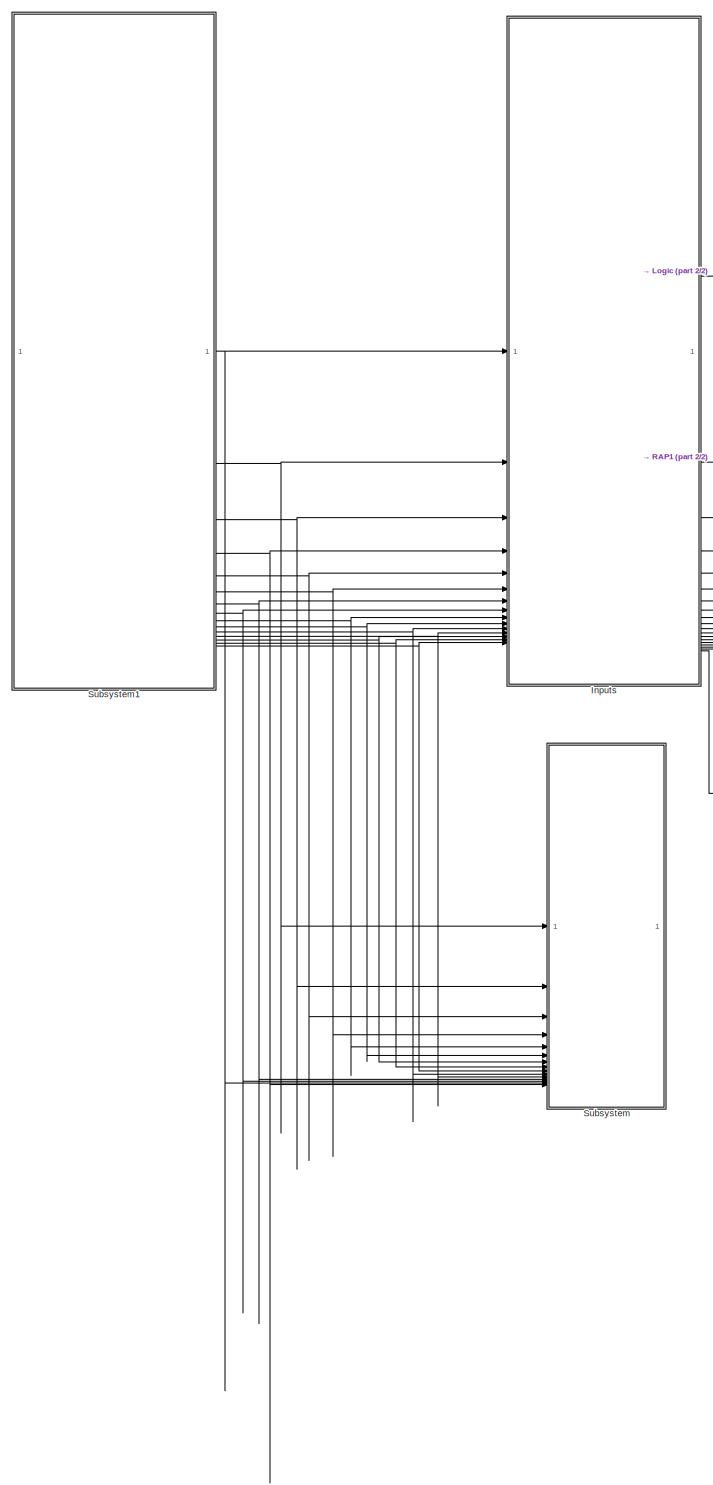
[diagram: root canvas - part 1/2, left side, full height]
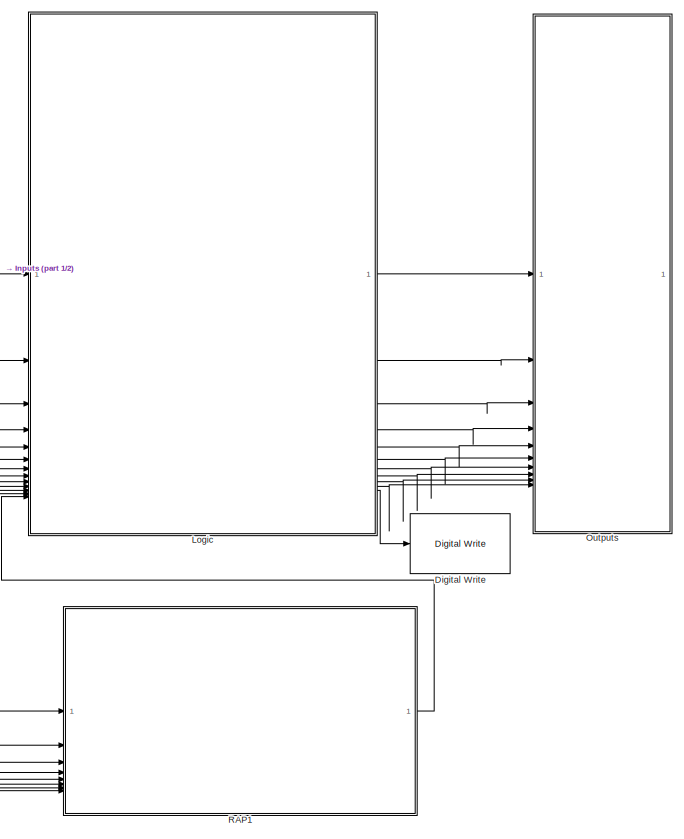
[diagram: root canvas - part 2/2, top right region]
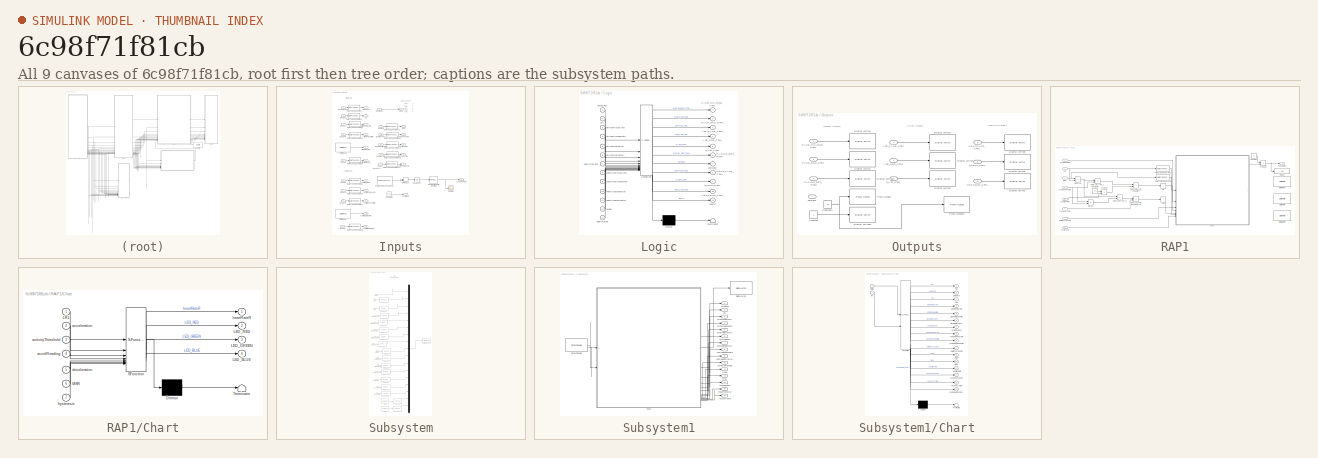
[diagram: thumbnail index - all 9 canvases of the model, root first then tree order]
MODEL slx_6c98f71f81cb
KIND model
CONFIG AbsTol = auto
CONFIG EnableMultiTasking = on
CONFIG FixedStep = 0.001
CONFIG MaxStep = auto
CONFIG MinStep = auto
CONFIG RelTol = 1e-3
CONFIG SampleTimeConstraint = Unconstrained
CONFIG SolverName = FixedStepAuto
CONFIG StartTime = 0.0
CONFIG StopTime = 30
BLOCK [Reference] Digital Write  REF=frdmk64flib/Digital Write
  SourceBlock = frdmk64flib/Digital Write
  SourceType = freedomk64f.DigitalWrite
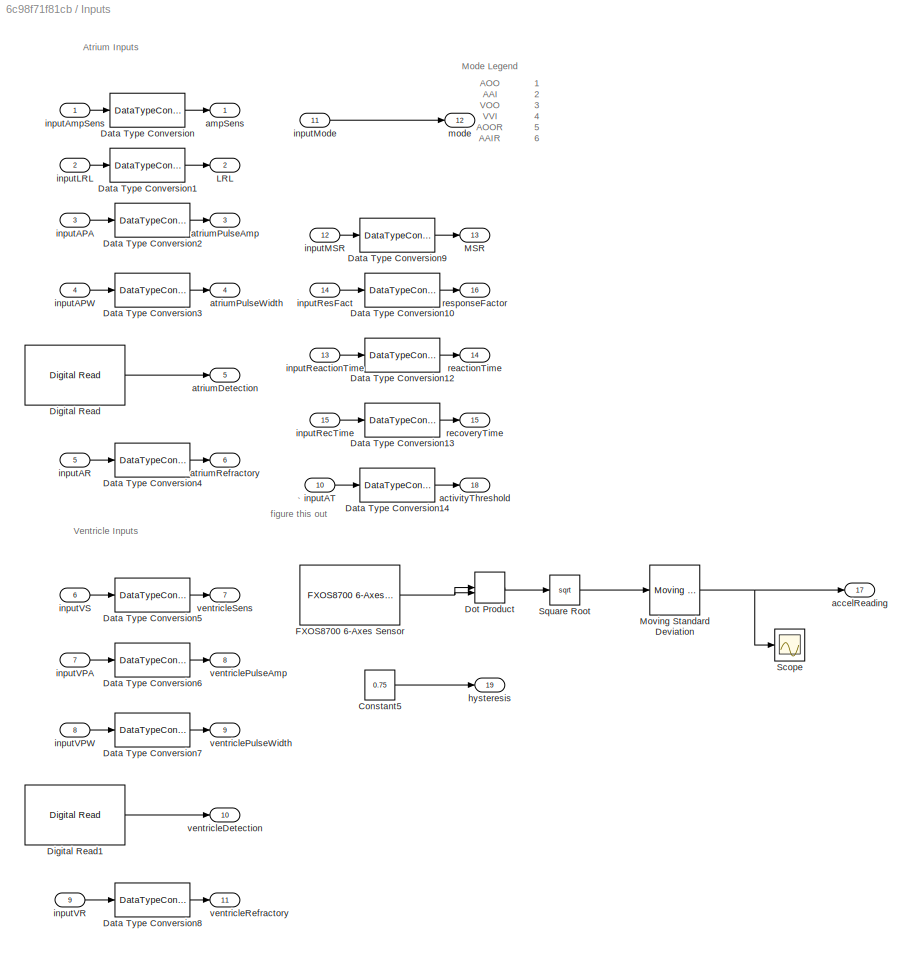
BLOCK [SubSystem] Inputs
BLOCK [Constant] Inputs/Constant5
  Value = 0.75
BLOCK [DataTypeConversion] Inputs/Data Type Conversion
  OutDataTypeStr = single
  RndMeth = Floor
  SaturateOnIntegerOverflow = off
BLOCK [DataTypeConversion] Inputs/Data Type Conversion1
  OutDataTypeStr = single
  RndMeth = Floor
  SaturateOnIntegerOverflow = off
BLOCK [DataTypeConversion] Inputs/Data Type Conversion10
  OutDataTypeStr = single
  RndMeth = Floor
  SaturateOnIntegerOverflow = off
BLOCK [DataTypeConversion] Inputs/Data Type Conversion12
  OutDataTypeStr = single
  RndMeth = Floor
  SaturateOnIntegerOverflow = off
BLOCK [DataTypeConversion] Inputs/Data Type Conversion13
  OutDataTypeStr = single
  RndMeth = Floor
  SaturateOnIntegerOverflow = off
BLOCK [DataTypeConversion] Inputs/Data Type Conversion14
  OutDataTypeStr = single
  RndMeth = Floor
  SaturateOnIntegerOverflow = off
BLOCK [DataTypeConversion] Inputs/Data Type Conversion2
  OutDataTypeStr = single
  RndMeth = Floor
  SaturateOnIntegerOverflow = off
BLOCK [DataTypeConversion] Inputs/Data Type Conversion3
  OutDataTypeStr = single
  RndMeth = Floor
  SaturateOnIntegerOverflow = off
BLOCK [DataTypeConversion] Inputs/Data Type Conversion4
  OutDataTypeStr = single
  RndMeth = Floor
  SaturateOnIntegerOverflow = off
BLOCK [DataTypeConversion] Inputs/Data Type Conversion5
  OutDataTypeStr = single
  RndMeth = Floor
  SaturateOnIntegerOverflow = off
BLOCK [DataTypeConversion] Inputs/Data Type Conversion6
  OutDataTypeStr = single
  RndMeth = Floor
  SaturateOnIntegerOverflow = off
BLOCK [DataTypeConversion] Inputs/Data Type Conversion7
  OutDataTypeStr = single
  RndMeth = Floor
  SaturateOnIntegerOverflow = off
BLOCK [DataTypeConversion] Inputs/Data Type Conversion8
  OutDataTypeStr = single
  RndMeth = Floor
  SaturateOnIntegerOverflow = off
BLOCK [DataTypeConversion] Inputs/Data Type Conversion9
  OutDataTypeStr = single
  RndMeth = Floor
  SaturateOnIntegerOverflow = off
BLOCK [Reference] Inputs/Digital Read  REF=frdmk64flib/Digital Read
  SourceBlock = frdmk64flib/Digital Read
  SourceType = freedomk64f.DigitalRead
BLOCK [Reference] Inputs/Digital Read1  REF=frdmk64flib/Digital Read
  SourceBlock = frdmk64flib/Digital Read
  SourceType = freedomk64f.DigitalRead
BLOCK [DotProduct] Inputs/Dot Product
  OutDataTypeStr = Inherit: Inherit via internal rule
BLOCK [Reference] Inputs/FXOS8700 6-Axes Sensor  REF=frdmk64flib/FXOS8700 6-Axes Sensor
  SourceBlock = frdmk64flib/FXOS8700 6-Axes Sensor
  SourceType = freedomk64f.fxos8700
BLOCK [Outport] Inputs/LRL
  OutDataTypeStr = single
  Port = 2
BLOCK [Outport] Inputs/MSR
  Port = 13
BLOCK [Reference] Inputs/Moving Standard Deviation  REF=dspstat3/Moving
Standard
Deviation
  SourceBlock = dspstat3/Moving\nStandard\nDeviation
  SourceType = dsp.simulink.MovingStandardDeviation
BLOCK [Scope] Inputs/Scope
  Floating = off
  NumInputPorts = 1
  ScopeSpecificationString = Simulink.scopes.TimeScopeBlockCfg('CurrentConfiguration', extmgr.ConfigurationSet(extmgr.Configuration('Core','General UI',true),extmgr.Configuration('Core','Source UI',true),extmgr.Configuration('Sources','WiredSimulink',true,'DataLoggingVariableName','ScopeData1'),extmgr.Configuration('Visuals','Time Domain',true,'SerializedDisplays',{struct('MinYLimReal','-0.35868','MaxYLimReal','4.99321','YLab...<+1428ch>
BLOCK [Sqrt] Inputs/Square Root
BLOCK [Outport] Inputs/accelReading
  Port = 17
BLOCK [Outport] Inputs/activityThreshold
  Port = 18
BLOCK [Outport] Inputs/ampSens
  OutDataTypeStr = single
BLOCK [Outport] Inputs/atriumDetection
  OutDataTypeStr = boolean
  Port = 5
BLOCK [Outport] Inputs/atriumPulseAmp
  OutDataTypeStr = single
  Port = 3
BLOCK [Outport] Inputs/atriumPulseWidth
  OutDataTypeStr = single
  Port = 4
BLOCK [Outport] Inputs/atriumRefractory
  OutDataTypeStr = single
  Port = 6
BLOCK [Outport] Inputs/hysteresis
  Port = 19
BLOCK [Inport] Inputs/inputAPA
  Port = 3
BLOCK [Inport] Inputs/inputAPW
  Port = 4
BLOCK [Inport] Inputs/inputAR
  Port = 5
BLOCK [Inport] Inputs/inputAT
  Port = 10
BLOCK [Inport] Inputs/inputAmpSens
BLOCK [Inport] Inputs/inputLRL
  Port = 2
BLOCK [Inport] Inputs/inputMSR
  Port = 12
BLOCK [Inport] Inputs/inputMode
  Port = 11
BLOCK [Inport] Inputs/inputReactionTime
  Port = 13
BLOCK [Inport] Inputs/inputRecTime
  Port = 15
BLOCK [Inport] Inputs/inputResFact
  Port = 14
BLOCK [Inport] Inputs/inputVPA
  Port = 7
BLOCK [Inport] Inputs/inputVPW
  Port = 8
BLOCK [Inport] Inputs/inputVR
  Port = 9
BLOCK [Inport] Inputs/inputVS
  Port = 6
BLOCK [Outport] Inputs/mode
  OutDataTypeStr = uint8
  Port = 12
BLOCK [Outport] Inputs/reactionTime
  Port = 14
BLOCK [Outport] Inputs/recoveryTime
  Port = 15
BLOCK [Outport] Inputs/responseFactor
  Port = 16
BLOCK [Outport] Inputs/ventricleDetection
  OutDataTypeStr = boolean
  Port = 10
BLOCK [Outport] Inputs/ventriclePulseAmp
  OutDataTypeStr = single
  Port = 8
BLOCK [Outport] Inputs/ventriclePulseWidth
  OutDataTypeStr = single
  Port = 9
BLOCK [Outport] Inputs/ventricleRefractory
  OutDataTypeStr = single
  Port = 11
BLOCK [Outport] Inputs/ventricleSens
  OutDataTypeStr = single
  Port = 7
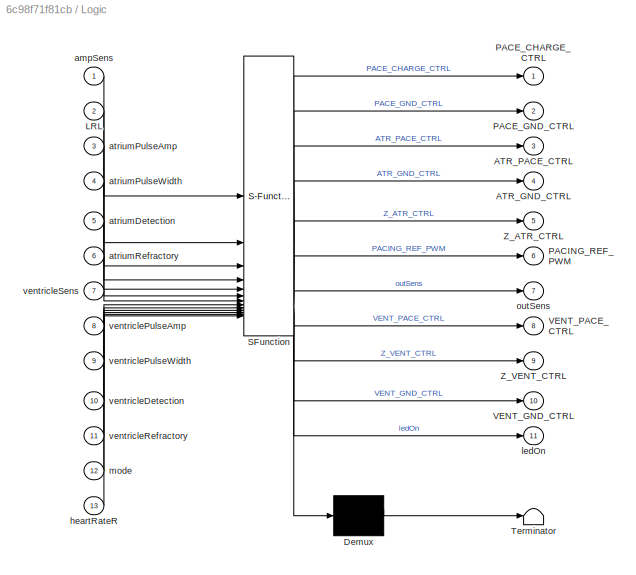
BLOCK [SubSystem] Logic
  ErrorFcn = Stateflow.Translate.translate
  PermitHierarchicalResolution = ExplicitOnly
  SFBlockType = Chart
  TreatAsAtomicUnit = on
BLOCK [Demux] Logic/ Demux 
  Outputs = 1
BLOCK [S-Function] Logic/ SFunction 
  EnableBusSupport = on
  FunctionName = sf_sfun
  PortCounts = [13 12]
  SFcnIsStateOwnerBlock = off
  SFunctionDeploymentMode = off
  Tag = Stateflow S-Function 3
BLOCK [Terminator] Logic/ Terminator 
BLOCK [Outport] Logic/ATR_GND_CTRL
  Port = 4
BLOCK [Outport] Logic/ATR_PACE_CTRL
  Port = 3
BLOCK [Inport] Logic/LRL
  Port = 2
BLOCK [Outport] Logic/PACE_CHARGE_CTRL
BLOCK [Outport] Logic/PACE_GND_CTRL
  Port = 2
BLOCK [Outport] Logic/PACING_REF_PWM
  Port = 6
BLOCK [Outport] Logic/VENT_GND_CTRL
  Port = 10
BLOCK [Outport] Logic/VENT_PACE_CTRL
  Port = 8
BLOCK [Outport] Logic/Z_ATR_CTRL
  Port = 5
BLOCK [Outport] Logic/Z_VENT_CTRL
  Port = 9
BLOCK [Inport] Logic/ampSens
BLOCK [Inport] Logic/atriumDetection
  Port = 5
BLOCK [Inport] Logic/atriumPulseAmp
  Port = 3
BLOCK [Inport] Logic/atriumPulseWidth
  Port = 4
BLOCK [Inport] Logic/atriumRefractory
  Port = 6
BLOCK [Inport] Logic/heartRateR
  Port = 13
BLOCK [Outport] Logic/ledOn
  Port = 11
BLOCK [Inport] Logic/mode
  Port = 12
BLOCK [Outport] Logic/outSens
  Port = 7
BLOCK [Inport] Logic/ventricleDetection
  Port = 10
BLOCK [Inport] Logic/ventriclePulseAmp
  Port = 8
BLOCK [Inport] Logic/ventriclePulseWidth
  Port = 9
BLOCK [Inport] Logic/ventricleRefractory
  Port = 11
BLOCK [Inport] Logic/ventricleSens
  Port = 7
BLOCK [SubSystem] Outputs
BLOCK [Inport] Outputs/ATR_GND_CTRL
  OutDataTypeStr = boolean
  Port = 4
BLOCK [Inport] Outputs/ATR_PACE_CTRL
  OutDataTypeStr = boolean
  Port = 3
BLOCK [Constant] Outputs/Constant
  OutDataTypeStr = single
BLOCK [Constant] Outputs/Constant1
  Value = 75
BLOCK [Reference] Outputs/Digital Write1  REF=frdmk64flib/Digital Write
  SourceBlock = frdmk64flib/Digital Write
  SourceType = freedomk64f.DigitalWrite
BLOCK [Reference] Outputs/Digital Write10  REF=frdmk64flib/Digital Write
  SourceBlock = frdmk64flib/Digital Write
  SourceType = freedomk64f.DigitalWrite
BLOCK [Reference] Outputs/Digital Write2  REF=frdmk64flib/Digital Write
  SourceBlock = frdmk64flib/Digital Write
  SourceType = freedomk64f.DigitalWrite
BLOCK [Reference] Outputs/Digital Write3  REF=frdmk64flib/Digital Write
  SourceBlock = frdmk64flib/Digital Write
  SourceType = freedomk64f.DigitalWrite
BLOCK [Reference] Outputs/Digital Write4  REF=frdmk64flib/Digital Write
  SourceBlock = frdmk64flib/Digital Write
  SourceType = freedomk64f.DigitalWrite
BLOCK [Reference] Outputs/Digital Write5  REF=frdmk64flib/Digital Write
  SourceBlock = frdmk64flib/Digital Write
  SourceType = freedomk64f.DigitalWrite
BLOCK [Reference] Outputs/Digital Write6  REF=frdmk64flib/Digital Write
  SourceBlock = frdmk64flib/Digital Write
  SourceType = freedomk64f.DigitalWrite
BLOCK [Reference] Outputs/Digital Write7  REF=frdmk64flib/Digital Write
  SourceBlock = frdmk64flib/Digital Write
  SourceType = freedomk64f.DigitalWrite
BLOCK [Reference] Outputs/Digital Write8  REF=frdmk64flib/Digital Write
  SourceBlock = frdmk64flib/Digital Write
  SourceType = freedomk64f.DigitalWrite
BLOCK [Reference] Outputs/Digital Write9  REF=frdmk64flib/Digital Write
  SourceBlock = frdmk64flib/Digital Write
  SourceType = freedomk64f.DigitalWrite
BLOCK [Inport] Outputs/PACE_CHARGE_CTRL
  OutDataTypeStr = boolean
BLOCK [Inport] Outputs/PACE_GND_CTRL
  OutDataTypeStr = boolean
  Port = 2
BLOCK [Inport] Outputs/PACING_REF_PWM
  OutDataTypeStr = single
  Port = 6
BLOCK [Reference] Outputs/PWM Output  REF=frdmk64flib/PWM Output
  SourceBlock = frdmk64flib/PWM Output
  SourceType = freedomk64f.PWMOutput
BLOCK [Reference] Outputs/PWM Output1  REF=frdmk64flib/PWM Output
  SourceBlock = frdmk64flib/PWM Output
  SourceType = freedomk64f.PWMOutput
BLOCK [Inport] Outputs/VENT_GND_CTRL
  OutDataTypeStr = boolean
  Port = 10
BLOCK [Inport] Outputs/VENT_PACE_CTRL
  OutDataTypeStr = boolean
  Port = 8
BLOCK [Inport] Outputs/Z_ATR_CTRL
  OutDataTypeStr = boolean
  Port = 5
BLOCK [Inport] Outputs/Z_VENT_CTRL
  OutDataTypeStr = boolean
  Port = 9
BLOCK [Inport] Outputs/outSens
  OutDataTypeStr = single
  Port = 7
BLOCK [SubSystem] RAP1
BLOCK [Product] RAP1/(MSR-LRL)*RF_A
BLOCK [Product] RAP1/(MSR-LRL)*RF_A//reactionT
  Inputs = */
BLOCK [Product] RAP1/(MSR-LRL)*RF_D
BLOCK [Product] RAP1/(MSR-LRL)*RF_D//recoveryT
  Inputs = */
BLOCK [Rounding] RAP1/Ceil
  Operator = ceil
BLOCK [Rounding] RAP1/Ceil1
  Operator = ceil
BLOCK [SubSystem] RAP1/Chart
  ErrorFcn = Stateflow.Translate.translate
  PermitHierarchicalResolution = ExplicitOnly
  PortSchema = {"entries":[{"content":{"sides":[{"content":{"connectorIds":["In4","In1","In6","In2","In5","In3","In7"]},"type":"ConnectorPlacement.EquallySpacedRectSide","uuid":"e727a920-989a-48c2-8c82-674329886a5f"},{"content":{"connectorIds":["Out1","Out3","Out2","Out4"],"side":"RIGHT"},"type":"ConnectorPlacement.EquallySpacedRectSide","uuid":"1ee40f3e-9295-4daa-a641-24f0111d1364"},{"content":{"side":"TOP"},"t...<+279ch>
  SFBlockType = Chart
  TreatAsAtomicUnit = on
BLOCK [Demux] RAP1/Chart/ Demux 
  Outputs = 1
BLOCK [S-Function] RAP1/Chart/ SFunction 
  EnableBusSupport = on
  FunctionName = sf_sfun
  PortCounts = [7 5]
  SFcnIsStateOwnerBlock = off
  SFunctionDeploymentMode = off
  Tag = Stateflow S-Function 4
BLOCK [Terminator] RAP1/Chart/ Terminator 
BLOCK [Outport] RAP1/Chart/LED_BLUE
  Port = 4
BLOCK [Outport] RAP1/Chart/LED_GREEN
  Port = 3
BLOCK [Outport] RAP1/Chart/LED_RED
  Port = 2
BLOCK [Inport] RAP1/Chart/LRL
BLOCK [Inport] RAP1/Chart/MSR
  Port = 6
BLOCK [Inport] RAP1/Chart/accelReading
  Port = 4
BLOCK [Inport] RAP1/Chart/acceleration
  Port = 2
BLOCK [Inport] RAP1/Chart/activityThreshold
  Port = 3
BLOCK [Inport] RAP1/Chart/deceleration
  Port = 5
BLOCK [Outport] RAP1/Chart/heartRateR
BLOCK [Inport] RAP1/Chart/hysteresis
  Port = 7
BLOCK [Constant] RAP1/Constant
  OutDataTypeStr = single
  Value = 2
BLOCK [Constant] RAP1/Constant2
  Value = 10
BLOCK [DataTypeConversion] RAP1/Data Type Conversion
  OutDataTypeStr = single
  RndMeth = Floor
  SaturateOnIntegerOverflow = off
BLOCK [DataTypeConversion] RAP1/Data Type Conversion1
  OutDataTypeStr = single
  RndMeth = Floor
  SaturateOnIntegerOverflow = off
BLOCK [Reference] RAP1/Digital Write  REF=frdmk64flib/Digital Write
  Commented = on
  SourceBlock = frdmk64flib/Digital Write
  SourceType = freedomk64f.DigitalWrite
BLOCK [Reference] RAP1/Digital Write1  REF=frdmk64flib/Digital Write
  Commented = on
  SourceBlock = frdmk64flib/Digital Write
  SourceType = freedomk64f.DigitalWrite
BLOCK [Reference] RAP1/Digital Write2  REF=frdmk64flib/Digital Write
  Commented = on
  SourceBlock = frdmk64flib/Digital Write
  SourceType = freedomk64f.DigitalWrite
BLOCK [Display] RAP1/Display
  Decimation = 1
BLOCK [Inport] RAP1/LRL
BLOCK [Inport] RAP1/MSR
  Port = 2
BLOCK [Sum] RAP1/MSR-LRL
  IconShape = rectangular
  Inputs = +-
BLOCK [Product] RAP1/Product
BLOCK [Product] RAP1/Product1
BLOCK [Product] RAP1/RF_D
  Inputs = */
BLOCK [Inport] RAP1/accelReading
  Port = 6
BLOCK [Inport] RAP1/activityThreshold
  Port = 7
BLOCK [Outport] RAP1/heartRateR
BLOCK [Inport] RAP1/hysteresis
  Port = 8
BLOCK [Inport] RAP1/reactionTime
  Port = 3
BLOCK [Inport] RAP1/recoveryTime
  Port = 4
BLOCK [Inport] RAP1/responseFactor
  Port = 5
BLOCK [SubSystem] Subsystem
BLOCK [Reference] Subsystem/Byte Pack  REF=etargetslib/Byte Pack
  LibrarySourceBlock = embeddedtargetslib/Host Communication/Byte Pack
  SourceBlock = etargetslib/Byte Pack
  SourceType = Byte pack
BLOCK [Reference] Subsystem/Byte Pack1  REF=etargetslib/Byte Pack
  SourceBlock = etargetslib/Byte Pack
  SourceType = Byte pack
BLOCK [Reference] Subsystem/Byte Pack10  REF=etargetslib/Byte Pack
  SourceBlock = etargetslib/Byte Pack
  SourceType = Byte pack
BLOCK [Reference] Subsystem/Byte Pack11  REF=etargetslib/Byte Pack
  SourceBlock = etargetslib/Byte Pack
  SourceType = Byte pack
BLOCK [Reference] Subsystem/Byte Pack12  REF=etargetslib/Byte Pack
  SourceBlock = etargetslib/Byte Pack
  SourceType = Byte pack
BLOCK [Reference] Subsystem/Byte Pack13  REF=etargetslib/Byte Pack
  SourceBlock = etargetslib/Byte Pack
  SourceType = Byte pack
BLOCK [Reference] Subsystem/Byte Pack14  REF=etargetslib/Byte Pack
  LibrarySourceBlock = embeddedtargetslib/Host Communication/Byte Pack
  SourceBlock = etargetslib/Byte Pack
  SourceType = Byte pack
BLOCK [Reference] Subsystem/Byte Pack15  REF=etargetslib/Byte Pack
  SourceBlock = etargetslib/Byte Pack
  SourceType = Byte pack
BLOCK [Reference] Subsystem/Byte Pack2  REF=etargetslib/Byte Pack
  SourceBlock = etargetslib/Byte Pack
  SourceType = Byte pack
BLOCK [Reference] Subsystem/Byte Pack3  REF=etargetslib/Byte Pack
  SourceBlock = etargetslib/Byte Pack
  SourceType = Byte pack
BLOCK [Reference] Subsystem/Byte Pack4  REF=etargetslib/Byte Pack
  SourceBlock = etargetslib/Byte Pack
  SourceType = Byte pack
BLOCK [Reference] Subsystem/Byte Pack5  REF=etargetslib/Byte Pack
  SourceBlock = etargetslib/Byte Pack
  SourceType = Byte pack
BLOCK [Reference] Subsystem/Byte Pack6  REF=etargetslib/Byte Pack
  SourceBlock = etargetslib/Byte Pack
  SourceType = Byte pack
BLOCK [Reference] Subsystem/Byte Pack7  REF=etargetslib/Byte Pack
  SourceBlock = etargetslib/Byte Pack
  SourceType = Byte pack
BLOCK [Reference] Subsystem/Byte Pack8  REF=etargetslib/Byte Pack
  SourceBlock = etargetslib/Byte Pack
  SourceType = Byte pack
BLOCK [Reference] Subsystem/Byte Pack9  REF=etargetslib/Byte Pack
  SourceBlock = etargetslib/Byte Pack
  SourceType = Byte pack
BLOCK [Inport] Subsystem/LRL
  OutDataTypeStr = double
BLOCK [Inport] Subsystem/MSR
  OutDataTypeStr = double
  Port = 11
BLOCK [Mux] Subsystem/Mux
  DisplayOption = bar
  Inputs = 17
BLOCK [Reference] Subsystem/Serial Transmit  REF=frdmk64flib/Serial Transmit
  SourceBlock = frdmk64flib/Serial Transmit
  SourceType = freedomk64f.SCIWrite
BLOCK [Inport] Subsystem/activityThreshold
  OutDataTypeStr = double
  Port = 6
BLOCK [Inport] Subsystem/ampSens
  OutDataTypeStr = double
  Port = 14
BLOCK [Reference] Subsystem/atrium  REF=frdmk64flib/Analog Input
  SourceBlock = frdmk64flib/Analog Input
  SourceType = freedomk64f.AnalogInput
BLOCK [Inport] Subsystem/atriumPulseAmp
  OutDataTypeStr = double
  Port = 2
BLOCK [Inport] Subsystem/atriumPulseWidth
  OutDataTypeStr = double
  Port = 15
BLOCK [Inport] Subsystem/atriumRefractory
  OutDataTypeStr = double
  Port = 3
BLOCK [Inport] Subsystem/mode1
  OutDataTypeStr = uint8
  Port = 10
BLOCK [Inport] Subsystem/reactionTime
  OutDataTypeStr = double
  Port = 7
BLOCK [Inport] Subsystem/recoveryTime
  OutDataTypeStr = double
  Port = 9
BLOCK [Inport] Subsystem/responseFactor
  OutDataTypeStr = double
  Port = 8
BLOCK [TriggerPort] Subsystem/sending_parameters
  FunctionName = sending_parameters
  IsSimulinkFunction = on
  StatesWhenEnabling = held
  TriggerType = function-call
  VariantControl = Variant
BLOCK [Reference] Subsystem/ventricle  REF=frdmk64flib/Analog Input
  SourceBlock = frdmk64flib/Analog Input
  SourceType = freedomk64f.AnalogInput
BLOCK [Inport] Subsystem/ventriclePulseAmp
  OutDataTypeStr = double
  Port = 12
BLOCK [Inport] Subsystem/ventriclePulseWidth
  OutDataTypeStr = double
  Port = 13
BLOCK [Inport] Subsystem/ventricleRefractory
  OutDataTypeStr = double
  Port = 5
BLOCK [Inport] Subsystem/ventricleSens
  OutDataTypeStr = double
  Port = 4
BLOCK [SubSystem] Subsystem1
BLOCK [Outport] Subsystem1/AmpSens
  OutDataTypeStr = double
BLOCK [SubSystem] Subsystem1/Chart
  ErrorFcn = Stateflow.Translate.translate
  PermitHierarchicalResolution = ExplicitOnly
  PortSchema = {"entries":[{"content":{"sides":[{"content":{"connectorIds":["In2","In1"]},"type":"ConnectorPlacement.EquallySpacedRectSide","uuid":"4f5a3770-f300-418f-9487-637399e38c69"},{"content":{"connectorIds":["Out1","Out2","Out3","Out4","Out5","Out6","Out7","Out8","Out9","Out16","Out10","Out11","Out12","Out13","Out14","Out15"],"side":"RIGHT"},"type":"ConnectorPlacement.EquallySpacedRectSide","uuid":"cfe58c...<+340ch>
  SFBlockType = Chart
  TreatAsAtomicUnit = on
BLOCK [Demux] Subsystem1/Chart/ Demux 
  Outputs = 1
BLOCK [S-Function] Subsystem1/Chart/ SFunction 
  EnableBusSupport = on
  FunctionName = sf_sfun
  PortCounts = [2 17]
  SFcnIsStateOwnerBlock = off
  SFunctionDeploymentMode = off
  Tag = Stateflow S-Function 2
BLOCK [Terminator] Subsystem1/Chart/ Terminator 
BLOCK [Outport] Subsystem1/Chart/LRL
  Port = 3
BLOCK [Outport] Subsystem1/Chart/MSR
  Port = 12
BLOCK [Inport] Subsystem1/Chart/RX
  Port = 2
BLOCK [Inport] Subsystem1/Chart/Status
BLOCK [Outport] Subsystem1/Chart/activityThreshold
  Port = 10
BLOCK [Outport] Subsystem1/Chart/ampSens
  Port = 2
BLOCK [Outport] Subsystem1/Chart/atriumPulseAmp
  Port = 4
BLOCK [Outport] Subsystem1/Chart/atriumPulseWidth
  Port = 5
BLOCK [Outport] Subsystem1/Chart/atriumRefractory
  Port = 6
BLOCK [Outport] Subsystem1/Chart/led
BLOCK [Outport] Subsystem1/Chart/mode
  Port = 11
BLOCK [Outport] Subsystem1/Chart/reactionTime
  Port = 13
BLOCK [Outport] Subsystem1/Chart/recoveryTime
  Port = 15
BLOCK [Outport] Subsystem1/Chart/responseFactor
  Port = 14
BLOCK [Outport] Subsystem1/Chart/ventriclePulseAmp
  Port = 8
BLOCK [Outport] Subsystem1/Chart/ventriclePulseWidth
  Port = 9
BLOCK [Outport] Subsystem1/Chart/ventricleRefractory
  Port = 16
BLOCK [Outport] Subsystem1/Chart/ventricleSens
  Port = 7
BLOCK [Reference] Subsystem1/Digital Write  REF=frdmk64flib/Digital Write
  SourceBlock = frdmk64flib/Digital Write
  SourceType = freedomk64f.DigitalWrite
BLOCK [Outport] Subsystem1/LRL
  OutDataTypeStr = double
  Port = 2
BLOCK [Outport] Subsystem1/MSR
  OutDataTypeStr = double
  Port = 12
BLOCK [Reference] Subsystem1/Serial Receive  REF=frdmk64flib/Serial Receive
  SourceBlock = frdmk64flib/Serial Receive
  SourceType = freedomk64f.SCIRead
BLOCK [Outport] Subsystem1/activityThreshold
  OutDataTypeStr = double
  Port = 10
BLOCK [Outport] Subsystem1/atriumPulseAmp
  OutDataTypeStr = double
  Port = 3
BLOCK [Outport] Subsystem1/atriumPulseWidth
  OutDataTypeStr = double
  Port = 4
BLOCK [Outport] Subsystem1/atriumRefractory
  OutDataTypeStr = double
  Port = 5
BLOCK [Outport] Subsystem1/mode
  OutDataTypeStr = uint8
  Port = 11
BLOCK [Outport] Subsystem1/reactionTime
  OutDataTypeStr = double
  Port = 13
BLOCK [Outport] Subsystem1/recoveryTime
  OutDataTypeStr = double
  Port = 15
BLOCK [Outport] Subsystem1/responseFactor
  OutDataTypeStr = double
  Port = 14
BLOCK [Outport] Subsystem1/ventriclePulseAmp
  OutDataTypeStr = double
  Port = 7
BLOCK [Outport] Subsystem1/ventriclePulseWidth
  OutDataTypeStr = double
  Port = 8
BLOCK [Outport] Subsystem1/ventricleRefractory
  OutDataTypeStr = double
  Port = 9
BLOCK [Outport] Subsystem1/ventricleSens
  OutDataTypeStr = double
  Port = 6
ANNOTATION Inputs: 1 2 3 4 5 6 7 8
ANNOTATION Inputs: Atrium Inputs
ANNOTATION Inputs: Ventricle Inputs
ANNOTATION Inputs: Mode Legend
ANNOTATION Inputs: AOO AAI VOO VVI AOOR AAIR VOO VVIR
ANNOTATION Inputs: figure this out `
ANNOTATION Outputs: General Outputs
ANNOTATION Outputs: Ventricle Outputs
ANNOTATION Outputs: Atrium Outputs
LINE Inputs/Constant5:1 -> Inputs/hysteresis:1
LINE Inputs/Data Type Conversion10:1 -> Inputs/responseFactor:1
LINE Inputs/Data Type Conversion12:1 -> Inputs/reactionTime:1
LINE Inputs/Data Type Conversion13:1 -> Inputs/recoveryTime:1
LINE Inputs/Data Type Conversion14:1 -> Inputs/activityThreshold:1
LINE Inputs/Data Type Conversion1:1 -> Inputs/LRL:1
LINE Inputs/Data Type Conversion2:1 -> Inputs/atriumPulseAmp:1
LINE Inputs/Data Type Conversion3:1 -> Inputs/atriumPulseWidth:1
LINE Inputs/Data Type Conversion4:1 -> Inputs/atriumRefractory:1
LINE Inputs/Data Type Conversion5:1 -> Inputs/ventricleSens:1
LINE Inputs/Data Type Conversion6:1 -> Inputs/ventriclePulseAmp:1
LINE Inputs/Data Type Conversion7:1 -> Inputs/ventriclePulseWidth:1
LINE Inputs/Data Type Conversion8:1 -> Inputs/ventricleRefractory:1
LINE Inputs/Data Type Conversion9:1 -> Inputs/MSR:1
LINE Inputs/Data Type Conversion:1 -> Inputs/ampSens:1
LINE Inputs/Digital Read1:1 -> Inputs/ventricleDetection:1
LINE Inputs/Digital Read:1 -> Inputs/atriumDetection:1
LINE Inputs/Dot Product:1 -> Inputs/Square Root:1
NET Inputs/FXOS8700 6-Axes Sensor:1 -> Inputs/Dot Product:1, Inputs/Dot Product:2
NET Inputs/Moving Standard Deviation:1 -> Inputs/Scope:1, Inputs/accelReading:1
LINE Inputs/Square Root:1 -> Inputs/Moving Standard Deviation:1
LINE Inputs/inputAPA:1 -> Inputs/Data Type Conversion2:1
LINE Inputs/inputAPW:1 -> Inputs/Data Type Conversion3:1
LINE Inputs/inputAR:1 -> Inputs/Data Type Conversion4:1
LINE Inputs/inputAT:1 -> Inputs/Data Type Conversion14:1
LINE Inputs/inputAmpSens:1 -> Inputs/Data Type Conversion:1
LINE Inputs/inputLRL:1 -> Inputs/Data Type Conversion1:1
LINE Inputs/inputMSR:1 -> Inputs/Data Type Conversion9:1
LINE Inputs/inputMode:1 -> Inputs/mode:1
LINE Inputs/inputReactionTime:1 -> Inputs/Data Type Conversion12:1
LINE Inputs/inputRecTime:1 -> Inputs/Data Type Conversion13:1
LINE Inputs/inputResFact:1 -> Inputs/Data Type Conversion10:1
LINE Inputs/inputVPA:1 -> Inputs/Data Type Conversion6:1
LINE Inputs/inputVPW:1 -> Inputs/Data Type Conversion7:1
LINE Inputs/inputVR:1 -> Inputs/Data Type Conversion8:1
LINE Inputs/inputVS:1 -> Inputs/Data Type Conversion5:1
LINE Inputs:1 -> Logic:1
LINE Inputs:10 -> Logic:10
LINE Inputs:11 -> Logic:11
LINE Inputs:12 -> Logic:12
LINE Inputs:13 -> RAP1:2
LINE Inputs:14 -> RAP1:3
LINE Inputs:15 -> RAP1:4
LINE Inputs:16 -> RAP1:5
LINE Inputs:17 -> RAP1:6
LINE Inputs:18 -> RAP1:7
LINE Inputs:19 -> RAP1:8
NET Inputs:2 -> Logic:2, RAP1:1
LINE Inputs:3 -> Logic:3
LINE Inputs:4 -> Logic:4
LINE Inputs:5 -> Logic:5
LINE Inputs:6 -> Logic:6
LINE Inputs:7 -> Logic:7
LINE Inputs:8 -> Logic:8
LINE Inputs:9 -> Logic:9
LINE Logic:1 -> Outputs:1
LINE Logic:10 -> Outputs:10
LINE Logic:11 -> Digital Write:1
LINE Logic:2 -> Outputs:2
LINE Logic:3 -> Outputs:3
LINE Logic:4 -> Outputs:4
LINE Logic:5 -> Outputs:5
LINE Logic:6 -> Outputs:6
LINE Logic:7 -> Outputs:7
LINE Logic:8 -> Outputs:8
LINE Logic:9 -> Outputs:9
LINE Outputs/ATR_GND_CTRL:1 -> Outputs/Digital Write7:1
LINE Outputs/ATR_PACE_CTRL:1 -> Outputs/Digital Write4:1
NET Outputs/Constant1:1 -> Outputs/PWM Output1:1, Outputs/PWM Output:1
LINE Outputs/Constant:1 -> Outputs/Digital Write10:1
LINE Outputs/PACE_CHARGE_CTRL:1 -> Outputs/Digital Write3:1
LINE Outputs/PACE_GND_CTRL:1 -> Outputs/Digital Write1:1
LINE Outputs/PACING_REF_PWM:1 -> Outputs/Digital Write6:1
LINE Outputs/VENT_GND_CTRL:1 -> Outputs/Digital Write2:1
LINE Outputs/VENT_PACE_CTRL:1 -> Outputs/Digital Write8:1
LINE Outputs/Z_ATR_CTRL:1 -> Outputs/Digital Write5:1
LINE Outputs/Z_VENT_CTRL:1 -> Outputs/Digital Write9:1
LINE RAP1/(MSR-LRL)*RF_A//reactionT:1 -> RAP1/Ceil:1
LINE RAP1/(MSR-LRL)*RF_A:1 -> RAP1/(MSR-LRL)*RF_A//reactionT:1
LINE RAP1/(MSR-LRL)*RF_D//recoveryT:1 -> RAP1/Ceil1:1
LINE RAP1/(MSR-LRL)*RF_D:1 -> RAP1/(MSR-LRL)*RF_D//recoveryT:1
LINE RAP1/Ceil1:1 -> RAP1/Chart:5
LINE RAP1/Ceil:1 -> RAP1/Chart:2
LINE RAP1/Chart:1 -> RAP1/Product1:2
LINE RAP1/Constant2:1 -> RAP1/Product:1
LINE RAP1/Constant:1 -> RAP1/Product1:1
LINE RAP1/Data Type Conversion1:1 -> RAP1/Chart:1
LINE RAP1/Data Type Conversion:1 -> RAP1/Chart:6
NET RAP1/LRL:1 -> RAP1/Data Type Conversion1:1, RAP1/MSR-LRL:2
NET RAP1/MSR-LRL:1 -> RAP1/(MSR-LRL)*RF_A:1, RAP1/(MSR-LRL)*RF_D:1
NET RAP1/MSR:1 -> RAP1/Data Type Conversion:1, RAP1/MSR-LRL:1
NET RAP1/Product1:1 -> RAP1/Display:1, RAP1/heartRateR:1
LINE RAP1/Product:1 -> RAP1/(MSR-LRL)*RF_A//reactionT:2
LINE RAP1/RF_D:1 -> RAP1/(MSR-LRL)*RF_D:2
LINE RAP1/accelReading:1 -> RAP1/Chart:4
LINE RAP1/activityThreshold:1 -> RAP1/Chart:3
LINE RAP1/hysteresis:1 -> RAP1/Chart:7
LINE RAP1/reactionTime:1 -> RAP1/Product:2
LINE RAP1/recoveryTime:1 -> RAP1/(MSR-LRL)*RF_D//recoveryT:2
NET RAP1/responseFactor:1 -> RAP1/(MSR-LRL)*RF_A:2, RAP1/RF_D:1, RAP1/RF_D:2
LINE RAP1:1 -> Logic:13
LINE Subsystem/Byte Pack10:1 -> Subsystem/Mux:8
LINE Subsystem/Byte Pack11:1 -> Subsystem/Mux:3
LINE Subsystem/Byte Pack12:1 -> Subsystem/Mux:13
LINE Subsystem/Byte Pack13:1 -> Subsystem/Mux:14
LINE Subsystem/Byte Pack14:1 -> Subsystem/Mux:17
LINE Subsystem/Byte Pack15:1 -> Subsystem/Mux:15
LINE Subsystem/Byte Pack1:1 -> Subsystem/Mux:2
LINE Subsystem/Byte Pack2:1 -> Subsystem/Mux:4
LINE Subsystem/Byte Pack3:1 -> Subsystem/Mux:6
LINE Subsystem/Byte Pack4:1 -> Subsystem/Mux:11
LINE Subsystem/Byte Pack5:1 -> Subsystem/Mux:9
LINE Subsystem/Byte Pack6:1 -> Subsystem/Mux:5
LINE Subsystem/Byte Pack7:1 -> Subsystem/Mux:7
LINE Subsystem/Byte Pack8:1 -> Subsystem/Mux:10
LINE Subsystem/Byte Pack9:1 -> Subsystem/Mux:12
LINE Subsystem/Byte Pack:1 -> Subsystem/Mux:16
LINE Subsystem/LRL:1 -> Subsystem/Byte Pack1:1
LINE Subsystem/MSR:1 -> Subsystem/Byte Pack11:1
LINE Subsystem/Mux:1 -> Subsystem/Serial Transmit:1
LINE Subsystem/activityThreshold:1 -> Subsystem/Byte Pack9:1
LINE Subsystem/ampSens:1 -> Subsystem/Byte Pack10:1
LINE Subsystem/atrium:1 -> Subsystem/Byte Pack:1
LINE Subsystem/atriumPulseAmp:1 -> Subsystem/Byte Pack2:1
LINE Subsystem/atriumPulseWidth:1 -> Subsystem/Byte Pack3:1
LINE Subsystem/atriumRefractory:1 -> Subsystem/Byte Pack4:1
LINE Subsystem/mode1:1 -> Subsystem/Mux:1
LINE Subsystem/reactionTime:1 -> Subsystem/Byte Pack12:1
LINE Subsystem/recoveryTime:1 -> Subsystem/Byte Pack15:1
LINE Subsystem/responseFactor:1 -> Subsystem/Byte Pack13:1
LINE Subsystem/ventricle:1 -> Subsystem/Byte Pack14:1
LINE Subsystem/ventriclePulseAmp:1 -> Subsystem/Byte Pack6:1
LINE Subsystem/ventriclePulseWidth:1 -> Subsystem/Byte Pack7:1
LINE Subsystem/ventricleRefractory:1 -> Subsystem/Byte Pack8:1
LINE Subsystem/ventricleSens:1 -> Subsystem/Byte Pack5:1
LINE Subsystem1/Chart:1 -> Subsystem1/Digital Write:1
LINE Subsystem1/Chart:10 -> Subsystem1/activityThreshold:1
LINE Subsystem1/Chart:11 -> Subsystem1/mode:1
LINE Subsystem1/Chart:12 -> Subsystem1/MSR:1
LINE Subsystem1/Chart:13 -> Subsystem1/reactionTime:1
LINE Subsystem1/Chart:14 -> Subsystem1/responseFactor:1
LINE Subsystem1/Chart:15 -> Subsystem1/recoveryTime:1
LINE Subsystem1/Chart:16 -> Subsystem1/ventricleRefractory:1
LINE Subsystem1/Chart:2 -> Subsystem1/AmpSens:1
LINE Subsystem1/Chart:3 -> Subsystem1/LRL:1
LINE Subsystem1/Chart:4 -> Subsystem1/atriumPulseAmp:1
LINE Subsystem1/Chart:5 -> Subsystem1/atriumPulseWidth:1
LINE Subsystem1/Chart:6 -> Subsystem1/atriumRefractory:1
LINE Subsystem1/Chart:7 -> Subsystem1/ventricleSens:1
LINE Subsystem1/Chart:8 -> Subsystem1/ventriclePulseAmp:1
LINE Subsystem1/Chart:9 -> Subsystem1/ventriclePulseWidth:1
LINE Subsystem1/Serial Receive:1 -> Subsystem1/Chart:2
LINE Subsystem1/Serial Receive:2 -> Subsystem1/Chart:1
NET Subsystem1:1 -> Inputs:1, Subsystem:14
NET Subsystem1:10 -> Inputs:10, Subsystem:6
NET Subsystem1:11 -> Inputs:11, Subsystem:10
NET Subsystem1:12 -> Inputs:12, Subsystem:11
NET Subsystem1:13 -> Inputs:13, Subsystem:7
NET Subsystem1:14 -> Inputs:14, Subsystem:8
NET Subsystem1:15 -> Inputs:15, Subsystem:9
NET Subsystem1:2 -> Inputs:2, Subsystem:1
NET Subsystem1:3 -> Inputs:3, Subsystem:2
NET Subsystem1:4 -> Inputs:4, Subsystem:15
NET Subsystem1:5 -> Inputs:5, Subsystem:3
NET Subsystem1:6 -> Inputs:6, Subsystem:4
NET Subsystem1:7 -> Inputs:7, Subsystem:12
NET Subsystem1:8 -> Inputs:8, Subsystem:13
NET Subsystem1:9 -> Inputs:9, Subsystem:5
note: NET lines group one-source signal fan-out (src -> all destinations, sorted); 1:1 wires keep LINE
CHART Subsystem1/Chart states=5 transitions=10
  STATE_LABEL 'ECHO_PARAM\nentry:\nled = 0\nsending_parameters();'
  STATE_LABEL 'Initial\n%Setting initial values of parameters\nentry:\nampSens = 75\nLRL = 60\natriumPulseAmp = 3.75\natriumPulseWidth = 0.4\natriumRefractory = 250\nventricleSens = 75\nventriclePulseAmp = 3.75\nventriclePulseWidth = 0.4\nventricleRefractory = 250\nactivityThreshold = 1\nmode = 1\nMSR = 175\nreactionTime = 0.5\nresponseFactor = 8\nrecoveryTime = 5\n'
  STATE_LABEL "ParameterSet\nentry:\nled = 1\nmode = RX(3);\nLRL = typecast(RX(4:11),'double');\nMSR = typecast(RX(12:19),'double');\natriumPulseAmp = typecast(RX(20:27),'double');\nventriclePulseAmp = typecast(RX(28:35),'double');\natriumPulseWidth = typecast(RX(36:43),'double');\nventriclePulseWidth = typecast(RX(44:51),'double');\nampSens = typecast(RX(52:59),'double');\nventricleSens = typecast(RX(60:67),'double');\nven...<+289ch>"
  STATE_LABEL 'Standby\n%Waiting for COM\n'
  STATE_LABEL 'SendBack\nentry:\nsending_parameters();\n'
CHART Logic states=37 transitions=73
  STATE_LABEL 'AOO'
  STATE_LABEL 'Charging_C22_Discharging_C21\n\nentry:\nPACING_REF_PWM=(atriumPulseAmp);\nPACE_GND_CTRL = true;\nZ_ATR_CTRL = false;\nATR_PACE_CTRL = false;\nATR_GND_CTRL = true;\nPACE_CHARGE_CTRL = true;\noutSens = ampSens;\n%charging primary capacitor and discharging blocking\n%capacitor in the same state'  <repeated x4 — deduplicated; at blocks: Logic>
  STATE_LABEL 'Pacing\n\nentry:\nPACE_CHARGE_CTRL = false;\nPACE_GND_CTRL = true;\nZ_ATR_CTRL = false;\nATR_GND_CTRL = false;\nATR_PACE_CTRL = true;\n%discharging primary capacitor for pulse width\n'
  STATE_LABEL '[after(60000/LRL-atriumPulseWidth,msec)]'
  STATE_LABEL '[after(atriumPulseWidth,msec)]'
  STATE_LABEL '[mode ~=1]'
  STATE_LABEL 'Pacing\n\nentry:\nPACE_CHARGE_CTRL = false;\nPACE_GND_CTRL = true;\nZ_ATR_CTRL = false;\nATR_GND_CTRL = false;\nATR_PACE_CTRL = true;\n%discharging primary capacitor for pulse width\n'
  STATE_LABEL 'AAI'
  STATE_LABEL 'Pacing\n\nentry:\nPACE_CHARGE_CTRL = false;\nPACE_GND_CTRL = true;\nZ_ATR_CTRL = false;\nATR_GND_CTRL = false;\nATR_PACE_CTRL = true;\n%discharging primary capacitor for pulse width\n'
  STATE_LABEL 'Sensing'
  STATE_LABEL '[atriumDetection==1]'
  STATE_LABEL '[after(atriumRefractory,msec)]'
  STATE_LABEL 'after(60000/LRL-atriumRefractory-atriumPulseWidth,msec)[atriumDetection==0]'
  STATE_LABEL '[after(atriumPulseWidth,msec)]'
  STATE_LABEL '[mode ~=3]'
  STATE_LABEL 'Pacing\n\nentry:\nPACE_CHARGE_CTRL = false;\nPACE_GND_CTRL = true;\nZ_ATR_CTRL = false;\nATR_GND_CTRL = false;\nATR_PACE_CTRL = true;\n%discharging primary capacitor for pulse width\n'
  STATE_LABEL 'Sensing'
  STATE_LABEL 'VOO'
  STATE_LABEL 'Charging_C22_Discharging_C21\n\nentry:\nPACING_REF_PWM=(ventriclePulseAmp);\nPACE_GND_CTRL = true;\nVENT_PACE_CTRL = false;\nZ_VENT_CTRL = false;\nVENT_GND_CTRL = true;\nPACE_CHARGE_CTRL = true;\noutSens = ventricleSens;\n%charging primary capacitor and discharging blocking\n%capacitor in the same state'
  STATE_LABEL 'Pacing\n\nentry:\nPACE_CHARGE_CTRL = false;\nPACE_GND_CTRL = true;\nZ_VENT_CTRL = false;\nVENT_GND_CTRL = false;\nVENT_PACE_CTRL = true;\n%discharging primary capacitor for pulse width\n'
  STATE_LABEL '[after(60000/LRL-ventriclePulseWidth,msec)]'
  STATE_LABEL '[after(ventriclePulseWidth,msec)]'
  STATE_LABEL '[mode ~=2]'
  STATE_LABEL 'Charging_C22_Discharging_C21\n\nentry:\nPACING_REF_PWM=(ventriclePulseAmp);\nPACE_GND_CTRL = true;\nVENT_PACE_CTRL = false;\nZ_VENT_CTRL = false;\nVENT_GND_CTRL = true;\nPACE_CHARGE_CTRL = true;\noutSens = ventricleSens;\n%charging primary capacitor and discharging blocking\n%capacitor in the same state'
  STATE_LABEL 'Pacing\n\nentry:\nPACE_CHARGE_CTRL = false;\nPACE_GND_CTRL = true;\nZ_VENT_CTRL = false;\nVENT_GND_CTRL = false;\nVENT_PACE_CTRL = true;\n%discharging primary capacitor for pulse width\n'
  STATE_LABEL 'VVI'
  STATE_LABEL 'Charging_C22_Discharging_C21\n\nentry:\nPACING_REF_PWM=(ventriclePulseAmp);\nPACE_GND_CTRL = true;\nVENT_PACE_CTRL = false;\nZ_VENT_CTRL = false;\nVENT_GND_CTRL = true;\nPACE_CHARGE_CTRL = true;\noutSens = ventricleSens;\nperiod = 60000/LRL\n%charging primary capacitor and discharging blocking\n%capacitor in the same state\n'
  STATE_LABEL 'Pacing\n\nentry:\nPACE_CHARGE_CTRL = false;\nPACE_GND_CTRL = true;\nZ_VENT_CTRL = false;\nVENT_GND_CTRL = false;\nVENT_PACE_CTRL = true;\nledOn = 1\n%discharging primary capacitor for pulse width\n'
  STATE_LABEL 'Sensing'
  STATE_LABEL '[ventricleDetection==1]'
  STATE_LABEL '[after(ventricleRefractory,msec)]'
  STATE_LABEL 'after(period-ventricleRefractory-ventriclePulseWidth,msec)[ventricleDetection==0]'
  STATE_LABEL '[after(ventriclePulseWidth,msec)]'
  STATE_LABEL '[mode ~=4]'
  STATE_LABEL 'Charging_C22_Discharging_C21\n\nentry:\nPACING_REF_PWM=(ventriclePulseAmp);\nPACE_GND_CTRL = true;\nVENT_PACE_CTRL = false;\nZ_VENT_CTRL = false;\nVENT_GND_CTRL = true;\nPACE_CHARGE_CTRL = true;\noutSens = ventricleSens;\nperiod = 60000/LRL\n%charging primary capacitor and discharging blocking\n%capacitor in the same state\n'
  STATE_LABEL 'Pacing\n\nentry:\nPACE_CHARGE_CTRL = false;\nPACE_GND_CTRL = true;\nZ_VENT_CTRL = false;\nVENT_GND_CTRL = false;\nVENT_PACE_CTRL = true;\nledOn = 1\n%discharging primary capacitor for pulse width\n'
  STATE_LABEL 'Sensing'
CHART RAP1/Chart states=6 transitions=10
  STATE_LABEL '.'
  STATE_LABEL 'Start_State\nentry:\nheartRateR = LRL\nLED_GREEN = false;\nLED_RED = false;\nLED_BLUE = true;'
  STATE_LABEL 'Acceleration_State\nentry:\nheartRateR = heartRateR + acceleration\nLED_GREEN = true;\nLED_RED = false;\nLED_BLUE = false;'
  STATE_LABEL 'Deceleration_State\nentry:\nheartRateR = heartRateR - deceleration\nLED_GREEN = false;\nLED_RED = true;\nLED_BLUE = false;'
  STATE_LABEL 'Steady_State\nentry:\nheartRateR = MSR;\nLED_GREEN = false;\nLED_RED = false;\nLED_BLUE = true;'
  STATE_LABEL '<!DOCTYPE HTML PUBLIC "-//W3C//DTD HTML 4.0//EN" "http://www.w3.org/TR/REC-html40/strict.dtd">\n<html><head><meta name="qrichtext" content="1" /><style type="text/css">\np, li { white-space: pre-wrap; }\n</style></head><body align="left" style=" font-family:\'Helvetica\'; font-size:12px; font-weight:400; font-style:normal;">\n<p align="left" style=" margin-top:0px; margin-bottom:0px; margin-left:0px; ma...<+241ch>'
CHART  states=0 transitions=0
CHART  states=0 transitions=0
CHART  states=0 transitions=0
